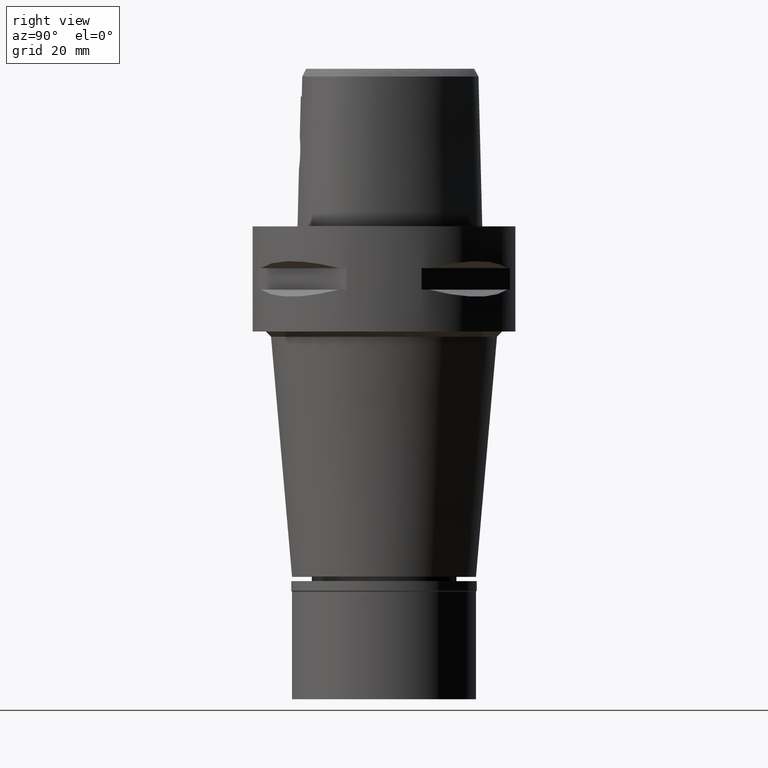
[diagram: clean part render]
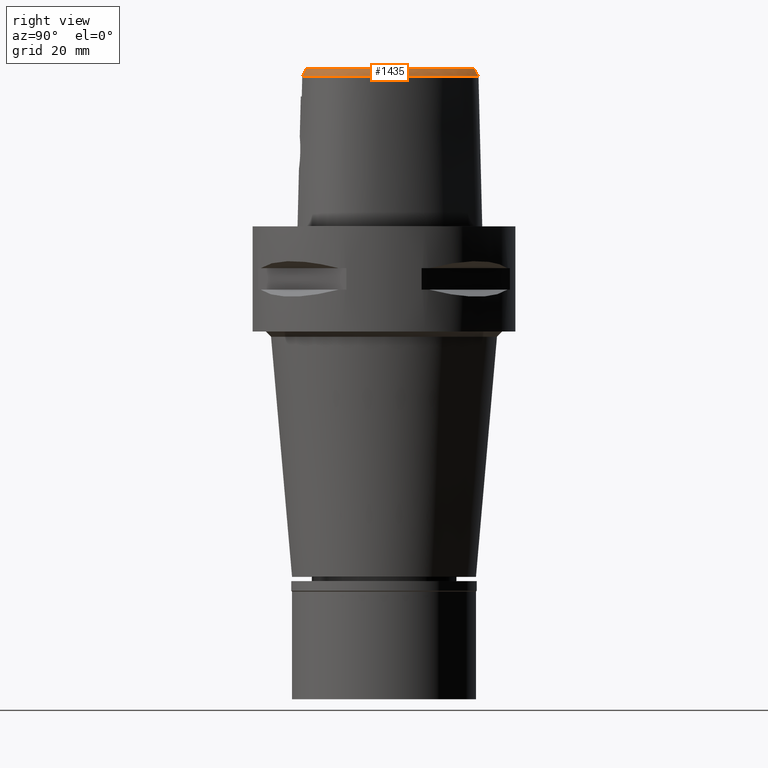
[diagram: same view with one face highlighted and labeled with its STEP entity id]
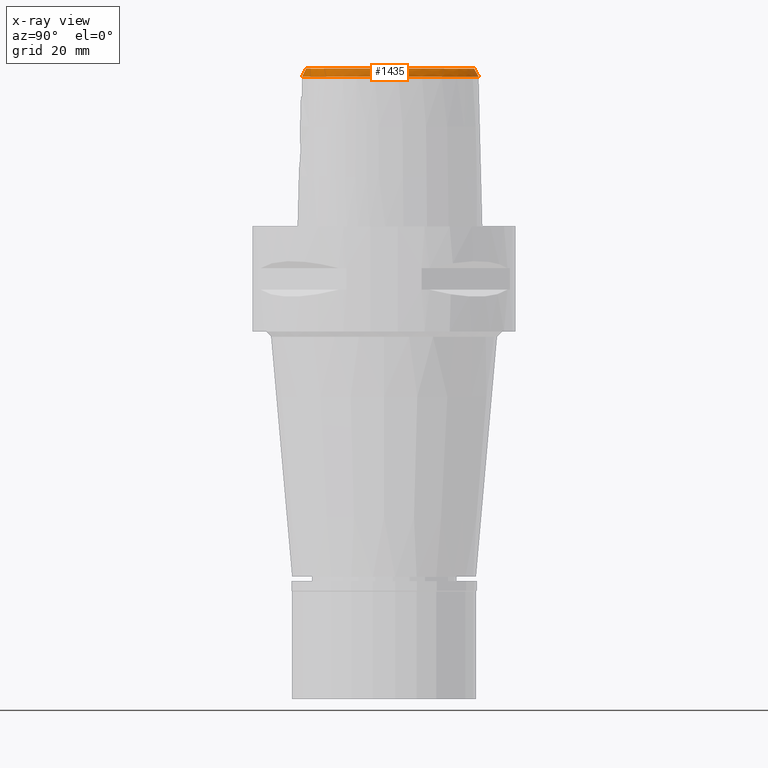
[diagram: x-ray of the same camera — body ghosted, the highlighted face saturated]
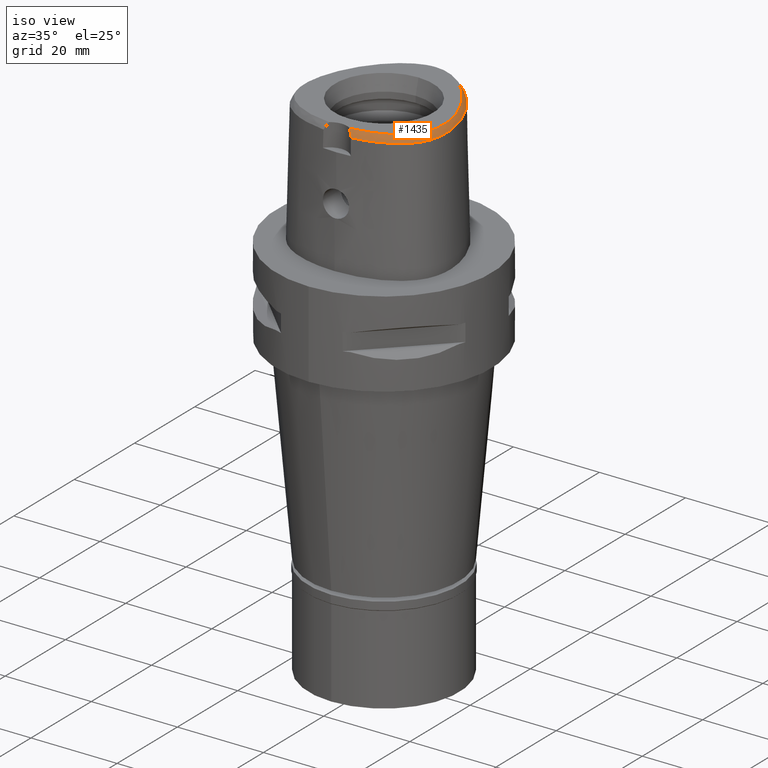
[diagram: same view with one face highlighted and labeled with its STEP entity id]
A machine part, right view. The second image highlights one B-rep face of the part: STEP entity #1435.
The next image is the same camera in x-ray: the body ghosted, the highlighted face saturated — about 0% of this face is hidden behind the body in this view.
A second angle (iso view) of the same face is appended — the face is thin or edge-on in the first view.
In plain terms, the highlighted face is a freeform B-spline surface patch.
Its self-contained STEP definition (entity closure, byte-faithful):
#20 = CARTESIAN_POINT ( 'NONE',  ( 16.06318230560999893, -7.341211726441999375, 28.96708367743999801 ) ) ;
#25 = CARTESIAN_POINT ( 'NONE',  ( 6.863227115065573258, 14.51498137220717410, 29.99999999999516120 ) ) ;
#41 = CARTESIAN_POINT ( 'NONE',  ( 14.92007271006999858, -9.559484903026000069, 28.96708342896000232 ) ) ;
#47 = CARTESIAN_POINT ( 'NONE',  ( 12.65514534656411882, -11.12483370673924732, 30.00000000000531841 ) ) ;
#65 = CARTESIAN_POINT ( 'NONE',  ( 15.22112875210999938, -7.687807943075000594, 30.14006812370000077 ) ) ;
#72 = CARTESIAN_POINT ( 'NONE',  ( 15.29323375805602936, -7.718923543003024079, 30.00000000000229861 ) ) ;
#95 = CARTESIAN_POINT ( 'NONE',  ( 7.863310641979999183, -13.95151688521000111, 29.55357671811000131 ) ) ;
#114 = CARTESIAN_POINT ( 'NONE',  ( 10.14119387402000072, -13.74735141594999988, 28.38059093183999693 ) ) ;
#122 = CARTESIAN_POINT ( 'NONE',  ( 15.71128456931492678, -6.534031654963481373, 30.00000000000159517 ) ) ;
#128 = CARTESIAN_POINT ( 'NONE',  ( -6.301949014333000064E-11, 17.15328888647999861, 30.00000000000000000 ) ) ;
#136 = ORIENTED_EDGE ( 'NONE', *, *, #3171, .T. ) ;
#138 = CARTESIAN_POINT ( 'NONE',  ( 12.90036511539999964, 7.999412311167001022, 29.55357583541999844 ) ) ;
#144 = CARTESIAN_POINT ( 'NONE',  ( 2.538962679605194950, -14.79292722369276092, 30.00000000000595435 ) ) ;
#165 = CARTESIAN_POINT ( 'NONE',  ( 16.61642685265000097, -1.593691307223999987, 28.96708315776000120 ) ) ;
#172 = CARTESIAN_POINT ( 'NONE',  ( 2.674237079551837759, -15.00654560860105136, 29.59847386634358557 ) ) ;
#190 = CARTESIAN_POINT ( 'NONE',  ( 16.76227622254999972, -6.055081460068000965, 28.38059098876999542 ) ) ;
#200 = CARTESIAN_POINT ( 'NONE',  ( 3.159971077295999908, -14.98323061888999952, 29.55357600510999916 ) ) ;
#213 = CARTESIAN_POINT ( 'NONE',  ( 16.03429360005000248, -2.631056289302000195, 30.14006815831000097 ) ) ;
#225 = CARTESIAN_POINT ( 'NONE',  ( 2.461529357711999655, -15.71215324455999962, 28.38059209296999796 ) ) ;
#242 = CARTESIAN_POINT ( 'NONE',  ( 16.99082547801999965, -4.443991837295999225, 28.38059218260999828 ) ) ;
#266 = CARTESIAN_POINT ( 'NONE',  ( 9.183266434829999270, 13.73132514527000048, 28.38059377673999961 ) ) ;
#272 = ORIENTED_EDGE ( 'NONE', *, *, #1714, .T. ) ;
#289 = CARTESIAN_POINT ( 'NONE',  ( 0.5636894552911999590, 17.06171939504999813, 30.14006817471999966 ) ) ;
#311 = CARTESIAN_POINT ( 'NONE',  ( 11.84303271896999910, 10.73855834176000101, 28.38059192632000105 ) ) ;
#334 = CARTESIAN_POINT ( 'NONE',  ( 3.052093429886000298, 16.53129057970000204, 30.14006824377000271 ) ) ;
#385 = CARTESIAN_POINT ( 'NONE',  ( 15.53987462035999911, -9.215062915530999987, 28.38059131616000030 ) ) ;
#391 = CARTESIAN_POINT ( 'NONE',  ( 11.92667412982332387, 9.061218325782888883, 30.00000000000109068 ) ) ;
#408 = CARTESIAN_POINT ( 'NONE',  ( 12.81363467122000088, -11.31853125569000085, 29.55357579149000102 ) ) ;
#430 = CARTESIAN_POINT ( 'NONE',  ( 6.811152537821999253, -14.61612724258000107, 28.96708602463999682 ) ) ;
#436 = CARTESIAN_POINT ( 'NONE',  ( 4.159771979224905714, -14.59766906204006531, 30.00000000000397193 ) ) ;
#442 = CARTESIAN_POINT ( 'NONE',  ( 2.406543924163999648, -14.80491841401999942, 30.00000000000000000 ) ) ;
#452 = CARTESIAN_POINT ( 'NONE',  ( 6.724267545710000960, -14.29907819113000045, 29.55357691977000201 ) ) ;
#479 = CARTESIAN_POINT ( 'NONE',  ( 11.32599089964000072, -11.98146669235000061, 30.14006810210000253 ) ) ;
#485 = CARTESIAN_POINT ( 'NONE',  ( 15.04259016984696373, -8.247723288182882584, 30.00000000000368061 ) ) ;
#487 = CARTESIAN_POINT ( 'NONE',  ( 16.85489147434688206, -5.354527548487546085, 28.52071728562186692 ) ) ;
#500 = CARTESIAN_POINT ( 'NONE',  ( 14.83372369776999911, 5.760537346607999432, 28.38059218026999986 ) ) ;
#520 = CARTESIAN_POINT ( 'NONE',  ( 16.79763554193000274, -0.4670741157540000410, 28.38059226020000025 ) ) ;
#529 = CARTESIAN_POINT ( 'NONE',  ( 15.07117004567362351, -9.793013887526788253, 28.52071728562186692 ) ) ;
#548 = CARTESIAN_POINT ( 'NONE',  ( 13.18211218956999886, 8.168757058733998377, 28.96708351572000240 ) ) ;
#575 = CARTESIAN_POINT ( 'NONE',  ( 12.40650082620000028, 9.385160752335000467, 28.96708431563000019 ) ) ;
#600 = CARTESIAN_POINT ( 'NONE',  ( 15.63563537726000341, -6.512960778821001107, 30.14006816412000234 ) ) ;
#628 = CARTESIAN_POINT ( 'NONE',  ( 8.502959684412999763, 13.01731031743999978, 30.14006793190000266 ) ) ;
#651 = CARTESIAN_POINT ( 'NONE',  ( 4.130005418857000343, 17.16976285832999949, 28.38059213633000155 ) ) ;
#670 = CARTESIAN_POINT ( 'NONE',  ( 0.04265960518690999764, 18.06647780908000200, 28.38059145955000062 ) ) ;
#694 = CARTESIAN_POINT ( 'NONE',  ( 10.08224778190999871, 12.82743142498999944, 28.38059298365000060 ) ) ;
#709 = CARTESIAN_POINT ( 'NONE',  ( -6.301949014333000064E-11, 17.15328888647999861, 30.00000000000000000 ) ) ;
#720 = CARTESIAN_POINT ( 'NONE',  ( 3.380858230139999865, 17.46130206655999828, 28.38059017097999970 ) ) ;
#747 = CARTESIAN_POINT ( 'NONE',  ( 14.02159384248000151, -9.654874514991998780, 30.14006811073999970 ) ) ;
#773 = CARTESIAN_POINT ( 'NONE',  ( 14.65184234432000032, -9.369266326079999985, 29.55357579792000067 ) ) ;
#793 = CARTESIAN_POINT ( 'NONE',  ( -0.3074302218382000129, 17.07054775129000035, 30.14006815435999798 ) ) ;
#798 = VERTEX_POINT ( 'NONE', #442 ) ;
#802 = CARTESIAN_POINT ( 'NONE',  ( 9.153172710139001467, -14.17716803220000088, 28.38059118652000024 ) ) ;
#813 = CARTESIAN_POINT ( 'NONE',  ( -0.4668486490910000453, 17.06219242155999893, 30.14006818550999967 ) ) ;
#821 = CARTESIAN_POINT ( 'NONE',  ( 15.44295954879000021, -7.122519753658000496, 30.14006813318000155 ) ) ;
#844 = CARTESIAN_POINT ( 'NONE',  ( 16.12688135875000128, -8.078668957113999127, 28.38059155920999999 ) ) ;
#852 = CARTESIAN_POINT ( 'NONE',  ( 16.08569500455590884, -4.373922630229269082, 30.00000000000166267 ) ) ;
#874 = CARTESIAN_POINT ( 'NONE',  ( 15.95397022470999815, 1.814119722683000147, 28.96708574531999858 ) ) ;
#880 = CARTESIAN_POINT ( 'NONE',  ( 15.68929135223704208, 0.4919393172822785210, 30.00000000000180833 ) ) ;
#881 = CARTESIAN_POINT ( 'NONE',  ( 5.902447799197345191, -15.16907841529213918, 28.52071728562186692 ) ) ;
#896 = CARTESIAN_POINT ( 'NONE',  ( 14.18525198368000062, 7.062880909126000972, 28.38059155177000292 ) ) ;
#902 = CARTESIAN_POINT ( 'NONE',  ( 10.60500548643788576, -12.49469941439725496, 29.99999999999858957 ) ) ;
#921 = CARTESIAN_POINT ( 'NONE',  ( 11.86160745584000153, 9.017290265054000997, 30.14006804663999972 ) ) ;
#930 = CARTESIAN_POINT ( 'NONE',  ( 11.33338046474596439, -13.08225241901946490, 28.52071728562186692 ) ) ;
#933 = CARTESIAN_POINT ( 'NONE',  ( 1.969224416557000090, -15.42106921690000121, 28.96708408107000210 ) ) ;
#953 = CARTESIAN_POINT ( 'NONE',  ( 13.46385926375000075, 8.338101806301001062, 28.38059119602000280 ) ) ;
#963 = CARTESIAN_POINT ( 'NONE',  ( 4.303219020468000089, -15.49394114751000018, 28.38059061881999767 ) ) ;
#975 = CARTESIAN_POINT ( 'NONE',  ( 16.57531950036000268, 0.6891833521985000210, 28.38059514225999891 ) ) ;
#997 = CARTESIAN_POINT ( 'NONE',  ( 8.076222430999999702, 14.28478736625000067, 28.96708385846000056 ) ) ;
#1025 = CARTESIAN_POINT ( 'NONE',  ( 9.842721025210000363, 12.60227890373999848, 28.96708465593000170 ) ) ;
#1049 = CARTESIAN_POINT ( 'NONE',  ( 7.863169644245999734, 14.03441962619000094, 29.55357598355000093 ) ) ;
#1059 = CARTESIAN_POINT ( 'NONE',  ( 3.078265684543580960, 16.60532678263120232, 29.99999999999918643 ) ) ;
#1070 = CARTESIAN_POINT ( 'NONE',  ( 1.893249527224999840, 17.53842658629999818, 28.96708371765999956 ) ) ;
#1093 = CARTESIAN_POINT ( 'NONE',  ( 6.552171011637000220, 15.84847921453999930, 28.38059502621999997 ) ) ;
#1102 = CARTESIAN_POINT ( 'NONE',  ( 2.158700576340999877, -15.73680809660999991, 28.38059210300999879 ) ) ;
#1124 = CARTESIAN_POINT ( 'NONE',  ( 6.637382553598000889, -13.98202913967999983, 30.14006781488999920 ) ) ;
#1128 = CARTESIAN_POINT ( 'NONE',  ( 6.048015628560617252, 15.09357031580420561, 30.00000000000423483 ) ) ;
#1146 = CARTESIAN_POINT ( 'NONE',  ( 14.32790802745000036, -10.80217436755000016, 28.38059111588000150 ) ) ;
#1151 = CARTESIAN_POINT ( 'NONE',  ( 14.55828366953321229, 4.114142377745556800, 29.99999999999883826 ) ) ;
#1171 = CARTESIAN_POINT ( 'NONE',  ( 9.722323305256001191, -12.85443043200999824, 30.14006817795999993 ) ) ;
#1191 = CARTESIAN_POINT ( 'NONE',  ( -0.5036687123200999094, 17.71826501358000172, 28.96708329153999983 ) ) ;
#1198 = CARTESIAN_POINT ( 'NONE',  ( 14.69744249013000115, -8.701692051002998696, 30.14006814471999718 ) ) ;
#1218 = CARTESIAN_POINT ( 'NONE',  ( 10.00157035110000159, -13.44971108796999815, 28.96708334721000000 ) ) ;
#1226 = CARTESIAN_POINT ( 'NONE',  ( 4.422474504766046977, 17.08283549833119608, 28.52071728562186692 ) ) ;
#1239 = CARTESIAN_POINT ( 'NONE',  ( 16.26915082688000069, -6.689416405255999898, 28.96708344930000223 ) ) ;
#1247 = CARTESIAN_POINT ( 'NONE',  ( 16.04058509949720346, -1.654113685488118657, 30.00000000000676437 ) ) ;
#1249 = CARTESIAN_POINT ( 'NONE',  ( 8.702202469521795436, -14.36510984286243797, 28.52071728562186692 ) ) ;
#1268 = CARTESIAN_POINT ( 'NONE',  ( 16.14879385161999892, -0.5734387889291999718, 29.55357612877999784 ) ) ;
#1275 = CARTESIAN_POINT ( 'NONE',  ( 15.90185233182387492, -0.6139199331564287876, 30.00000000000260059 ) ) ;
#1290 = CARTESIAN_POINT ( 'NONE',  ( 16.57317619408999931, -5.232669881326999395, 28.96708356255999917 ) ) ;
#1295 = CARTESIAN_POINT ( 'NONE',  ( 2.406543924163999648, -14.80491841401999942, 30.00000000000000000 ) ) ;
#1314 = CARTESIAN_POINT ( 'NONE',  ( 17.01958194338000041, -2.586310308865999996, 28.38059115905000240 ) ) ;
#1334 = CARTESIAN_POINT ( 'NONE',  ( -3.009969613578000157E-11, 17.98202997909999823, 28.52071728569000086 ) ) ;
#1344 = CARTESIAN_POINT ( 'NONE',  ( 15.56824103884000010, 3.056106132682000265, 28.96708351217000299 ) ) ;
#1371 = CARTESIAN_POINT ( 'NONE',  ( 8.956497518023999405, 13.49332020266000143, 28.96708516179000270 ) ) ;
#1384 = FACE_OUTER_BOUND ( 'NONE', #2965, .T. ) ;
#1394 = CARTESIAN_POINT ( 'NONE',  ( 9.363667511799999232, 12.15197386123000101, 30.14006800049999768 ) ) ;
#1399 = ORIENTED_EDGE ( 'NONE', *, *, #4698, .F. ) ;
#1422 = CARTESIAN_POINT ( 'NONE',  ( 8.729728601217999540, 13.25531526005000060, 29.55357654684999957 ) ) ;
#1427 = B_SPLINE_SURFACE_WITH_KNOTS ( 'NONE', 3, 3, ( 
 ( #3276, #4877, #933, #4482 ),
 ( #3365, #2220, #4854, #1102 ),
 ( #2240, #2077, #3597, #225 ),
 ( #1736, #200, #3250, #3216 ),
 ( #2842, #1766, #4345, #963 ),
 ( #4765, #2474, #3981, #2872 ),
 ( #1124, #452, #430, #2632 ),
 ( #4141, #95, #4236, #3848 ),
 ( #4194, #3034, #2335, #802 ),
 ( #1171, #2709, #1218, #114 ),
 ( #1525, #3440, #3778, #3107 ),
 ( #479, #1995, #1575, #1967 ),
 ( #3805, #2684, #3514, #2313 ),
 ( #3055, #408, #1624, #4603 ),
 ( #4510, #4582, #3825, #4532 ),
 ( #1942, #3873, #4216, #1146 ),
 ( #747, #1547, #2654, #1921 ),
 ( #4163, #773, #41, #2261 ),
 ( #1198, #3488, #2360, #385 ),
 ( #1901, #3461, #4555, #1602 ),
 ( #65, #3416, #2729, #844 ),
 ( #821, #3084, #20, #2285 ),
 ( #600, #2090, #1239, #4676 ),
 ( #3898, #3996, #2113, #190 ),
 ( #2860, #2412, #1290, #3634 ),
 ( #3128, #1677, #3919, #242 ),
 ( #4622, #2753, #3206, #2436 ),
 ( #213, #2802, #2486, #1314 ),
 ( #3972, #4263, #165, #4650 ),
 ( #1725, #1268, #3152, #520 ),
 ( #1701, #4699, #2465, #975 ),
 ( #3610, #2826, #874, #1646 ),
 ( #2014, #2067, #1344, #4333 ),
 ( #3233, #4357, #2780, #2040 ),
 ( #4727, #4286, #2390, #500 ),
 ( #3181, #3534, #3560, #896 ),
 ( #4307, #138, #548, #953 ),
 ( #921, #3585, #575, #3945 ),
 ( #2211, #2602, #2575, #311 ),
 ( #2182, #4088, #3338, #1448 ),
 ( #1394, #1829, #1025, #694 ),
 ( #628, #1422, #1371, #266 ),
 ( #4115, #1049, #997, #3730 ),
 ( #4775, #1776, #3660, #1469 ),
 ( #2906, #2509, #2883, #1093 ),
 ( #3288, #4828, #2937, #4404 ),
 ( #4432, #2555, #3307, #2959 ),
 ( #2233, #2979, #2536, #651 ),
 ( #334, #4454, #4021, #720 ),
 ( #4472, #4380, #2139, #4047 ),
 ( #2161, #1850, #1070, #3681 ),
 ( #3358, #4846, #3752, #1750 ),
 ( #289, #1797, #3265, #4800 ),
 ( #4754, #3701, #4068, #670 ),
 ( #793, #2303, #3796, #3818 ),
 ( #813, #4134, #1191, #3047 ) ),
 .UNSPECIFIED., .F., .F., .F.,
 ( 4, 1, 1, 1, 1, 1, 1, 1, 1, 1, 1, 1, 1, 1, 1, 1, 1, 1, 1, 1, 1, 1, 1, 1, 1, 1, 1, 1, 1, 1, 1, 1, 1, 1, 1, 1, 1, 1, 1, 1, 1, 1, 1, 1, 1, 1, 1, 1, 1, 1, 1, 1, 1, 4 ),
 ( 4, 4 ),
 ( -0.006850724150829000207, 0.0000000000000000000, 0.005706470806014000280, 0.02559234138984000165, 0.04547821197368000223, 0.06536408255751000040, 0.08524995314132000068, 0.1051358237252000005, 0.1250216943090000088, 0.1449075648927999893, 0.1647934354767000009, 0.1846793060604999814, 0.2045651766443000175, 0.2244510472280999980, 0.2443369178119999818, 0.2642227883957999901, 0.2841086589796000261, 0.3039945295635000377, 0.3238804001471999872, 0.3437662707310999988, 0.3636521413150000104, 0.3835380118987999909, 0.4034238824826000269, 0.4233097530664000074, 0.4431956236502999635, 0.4630814942340999996, 0.4829673648179000356, 0.5028532354018000472, 0.5227391059856000277, 0.5426249765694000082, 0.5625108471533000198, 0.5823967177369999693, 0.6022825883208999809, 0.6221684589047999925, 0.6420543294886000840, 0.6619402000723999535, 0.6818260706561999340, 0.7017119412401000567, 0.7215978118238999262, 0.7414836824077000177, 0.7613695529916000293, 0.7812554235752999787, 0.8011412941591999903, 0.8210271647431000019, 0.8409130353268000624, 0.8607989059106999630, 0.8806847764944999435, 0.9005706470783999551, 0.9204565176621999356, 0.9403423882460000272, 0.9602282588299000388, 0.9801141294135999882, 1.000000000000000000, 1.016057694064999906 ),
 ( -0.07181344949152000667, 1.071845542588999889 ),
 .UNSPECIFIED. ) ;
#1435 = ADVANCED_FACE ( 'NONE', ( #1384 ), #1427, .F. ) ;
#1448 = CARTESIAN_POINT ( 'NONE',  ( 10.97300755747999901, 11.82788278324999887, 28.38059066848999734 ) ) ;
#1469 = CARTESIAN_POINT ( 'NONE',  ( 7.410824690153999583, 15.23896754217999927, 28.38059056668999958 ) ) ;
#1510 = B_SPLINE_CURVE_WITH_KNOTS ( 'NONE', 3,
 ( #3925, #3567, #172, #1295 ),
 .UNSPECIFIED., .F., .F.,
 ( 4, 4 ),
 ( 0.0000000000000000000, 1.000000000000000000 ),
 .UNSPECIFIED. ) ;
#1525 = CARTESIAN_POINT ( 'NONE',  ( 10.56748248473999929, -12.42572735957999974, 30.14006816282000045 ) ) ;
#1547 = CARTESIAN_POINT ( 'NONE',  ( 14.27613808196000100, -9.863043355599000250, 29.55357597683000037 ) ) ;
#1575 = CARTESIAN_POINT ( 'NONE',  ( 11.67492807168000013, -12.53880853885999969, 28.96708390663999921 ) ) ;
#1584 = CARTESIAN_POINT ( 'NONE',  ( 11.36765809995626064, -12.04801986072626896, 29.99999999999928946 ) ) ;
#1602 = CARTESIAN_POINT ( 'NONE',  ( 15.84941387524999712, -8.664231345333000434, 28.38059082647000153 ) ) ;
#1608 = CARTESIAN_POINT ( 'NONE',  ( 14.44767169633470516, -9.224476417585369958, 30.00000000000319744 ) ) ;
#1624 = CARTESIAN_POINT ( 'NONE',  ( 13.02185093511999980, -11.57300252722000167, 28.96708341408999843 ) ) ;
#1630 = CARTESIAN_POINT ( 'NONE',  ( 15.51702143706069670, -7.148634146069317019, 29.99999999999880274 ) ) ;
#1631 = CARTESIAN_POINT ( 'NONE',  ( 16.47905536661016512, -6.962316254603442722, 28.52071728562186692 ) ) ;
#1644 = VERTEX_POINT ( 'NONE', #1334 ) ;
#1646 = CARTESIAN_POINT ( 'NONE',  ( 16.27040028736999844, 1.903225623307000181, 28.38059469159999892 ) ) ;
#1656 = CARTESIAN_POINT ( 'NONE',  ( 0.6295828025434362374, 17.98202997637834955, 28.52071728562186692 ) ) ;
#1677 = CARTESIAN_POINT ( 'NONE',  ( 16.33521329447999904, -4.393238683811000023, 29.55357610738999696 ) ) ;
#1701 = CARTESIAN_POINT ( 'NONE',  ( 15.61265577524000037, 0.4748790123057999857, 30.14006781379000088 ) ) ;
#1714 = EDGE_CURVE ( 'NONE', #1644, #2867, #3142, .T. ) ;
#1717 = CARTESIAN_POINT ( 'NONE',  ( -3.009969613578000157E-11, 17.98202997909999823, 28.52071728569000086 ) ) ;
#1725 = CARTESIAN_POINT ( 'NONE',  ( 15.82437300645999834, -0.6266211255168000482, 30.14006806307000019 ) ) ;
#1736 = CARTESIAN_POINT ( 'NONE',  ( 3.121246857247999884, -14.65687832787000033, 30.14006810186999985 ) ) ;
#1750 = CARTESIAN_POINT ( 'NONE',  ( 1.287380336975000095, 17.97761362175999622, 28.38059090744999935 ) ) ;
#1766 = CARTESIAN_POINT ( 'NONE',  ( 4.199316179176999952, -14.84474535062999934, 29.55357567629999949 ) ) ;
#1776 = CARTESIAN_POINT ( 'NONE',  ( 7.014183926828000182, 14.71456341739999907, 29.55357566192000007 ) ) ;
#1797 = CARTESIAN_POINT ( 'NONE',  ( 0.5867287961756999515, 17.38974910633000093, 29.55357577292999949 ) ) ;
#1829 = CARTESIAN_POINT ( 'NONE',  ( 9.603194268504999798, 12.37712638249000108, 29.55357632820999925 ) ) ;
#1850 = CARTESIAN_POINT ( 'NONE',  ( 1.825611686568000103, 17.21663674869000005, 29.55357592270000211 ) ) ;
#1901 = CARTESIAN_POINT ( 'NONE',  ( 14.97280525350000069, -8.211698094907999845, 30.14006818708000068 ) ) ;
#1921 = CARTESIAN_POINT ( 'NONE',  ( 14.78522656093999998, -10.27938103680999937, 28.38059170902999639 ) ) ;
#1942 = CARTESIAN_POINT ( 'NONE',  ( 13.60830814342000039, -10.12743670611000013, 30.14006816204999950 ) ) ;
#1947 = CARTESIAN_POINT ( 'NONE',  ( 3.130495111450228407, -14.73481892791614278, 30.00000000000112976 ) ) ;
#1967 = CARTESIAN_POINT ( 'NONE',  ( 11.84939665770999895, -12.81747946211999967, 28.38059180890000022 ) ) ;
#1995 = CARTESIAN_POINT ( 'NONE',  ( 11.50045948565999865, -12.26013761560999882, 29.55357600437000087 ) ) ;
#2000 = CARTESIAN_POINT ( 'NONE',  ( 15.87349190488007622, -5.869792298897957394, 30.00000000000155254 ) ) ;
#2001 = CARTESIAN_POINT ( 'NONE',  ( 16.79165444019614739, -0.3537785292841507112, 28.52071728562186692 ) ) ;
#2014 = CARTESIAN_POINT ( 'NONE',  ( 14.94603091882000001, 2.843708326584999835, 30.14006815560000163 ) ) ;
#2027 = CARTESIAN_POINT ( 'NONE',  ( 3.168920890822999770, -15.55911073834000113, 28.52071374672999582 ) ) ;
#2036 = CARTESIAN_POINT ( 'NONE',  ( 4.499552315895915200, 15.99769543814564088, 30.00000000000155254 ) ) ;
#2040 = CARTESIAN_POINT ( 'NONE',  ( 15.40029459171000070, 4.453099689461000210, 28.38059100918999889 ) ) ;
#2049 = CARTESIAN_POINT ( 'NONE',  ( 3.168920890822999770, -15.55911073834000113, 28.52071374672999582 ) ) ;
#2067 = CARTESIAN_POINT ( 'NONE',  ( 15.25713597883000006, 2.949907229632999783, 29.55357583388999743 ) ) ;
#2077 = CARTESIAN_POINT ( 'NONE',  ( 2.402922512799000376, -15.05759804422999970, 29.55357608268000291 ) ) ;
#2090 = CARTESIAN_POINT ( 'NONE',  ( 15.95239310207000116, -6.601188592038000458, 29.55357580671000051 ) ) ;
#2113 = CARTESIAN_POINT ( 'NONE',  ( 16.44039012750999973, -5.987976310532999946, 28.96708338352000212 ) ) ;
#2139 = CARTESIAN_POINT ( 'NONE',  ( 2.569560953296999628, 17.37306529333999805, 28.96708338864000254 ) ) ;
#2161 = CARTESIAN_POINT ( 'NONE',  ( 1.757973845912000010, 16.89484691108999925, 30.14006812773000021 ) ) ;
#2182 = CARTESIAN_POINT ( 'NONE',  ( 10.21888584799000022, 11.19237327628000145, 30.14006820074000004 ) ) ;
#2211 = CARTESIAN_POINT ( 'NONE',  ( 11.05603306470000113, 10.14426804790999981, 30.14006809193999814 ) ) ;
#2220 = CARTESIAN_POINT ( 'NONE',  ( 2.107381550830000450, -15.08165983978000035, 29.55357608545000403 ) ) ;
#2233 = CARTESIAN_POINT ( 'NONE',  ( 3.742019048006000048, 16.26289145310999729, 30.14006807378999753 ) ) ;
#2240 = CARTESIAN_POINT ( 'NONE',  ( 2.373619090341999804, -14.73032044406000018, 30.14006807753999695 ) ) ;
#2261 = CARTESIAN_POINT ( 'NONE',  ( 15.18830307583000128, -9.749703479972000153, 28.38059106001000131 ) ) ;
#2265 = CARTESIAN_POINT ( 'NONE',  ( 9.420872132874794858, 12.20574557692409634, 30.00000000000455103 ) ) ;
#2285 = CARTESIAN_POINT ( 'NONE',  ( 16.37329368402000185, -7.450557712833000501, 28.38059144956999802 ) ) ;
#2303 = CARTESIAN_POINT ( 'NONE',  ( -0.3197702995465999676, 17.39894264343000074, 29.55357583781000130 ) ) ;
#2313 = CARTESIAN_POINT ( 'NONE',  ( 12.57812788082000033, -12.32793406355000165, 28.38059198991999565 ) ) ;
#2319 = CARTESIAN_POINT ( 'NONE',  ( 13.66559393375323772, -10.18115111193748668, 30.00000000000477129 ) ) ;
#2335 = CARTESIAN_POINT ( 'NONE',  ( 9.031149643654000414, -13.87189868493999967, 28.96708350966000012 ) ) ;
#2360 = CARTESIAN_POINT ( 'NONE',  ( 15.25906391028000009, -9.043939294021001274, 28.96708359235000074 ) ) ;
#2390 = CARTESIAN_POINT ( 'NONE',  ( 14.53572330853999972, 5.621773279986999938, 28.96708414351000016 ) ) ;
#2395 = CARTESIAN_POINT ( 'NONE',  ( 13.19176257967057886, -10.65479018522793275, 30.00000000000727240 ) ) ;
#2397 = CARTESIAN_POINT ( 'NONE',  ( 3.738627708319397502, -15.49270856215321679, 28.52071728562186692 ) ) ;
#2412 = CARTESIAN_POINT ( 'NONE',  ( 16.24762770175999904, -5.186565280856000548, 29.55357585566000012 ) ) ;
#2436 = CARTESIAN_POINT ( 'NONE',  ( 17.03317732885999902, -3.547311432646000018, 28.38059142474999774 ) ) ;
#2441 = B_SPLINE_CURVE_WITH_KNOTS ( 'NONE', 3,
 ( #4292, #1656, #3926, #1226, #3521, #3883, #2808, #3115, #2001, #2786, #487, #1631, #2763, #3980, #529, #4629, #3954, #930, #1249, #881, #2397, #2049 ),
 .UNSPECIFIED., .F., .F.,
 ( 4, 1, 1, 1, 1, 1, 1, 1, 1, 1, 1, 1, 1, 1, 1, 1, 1, 1, 1, 4 ),
 ( 0.0000000000000000000, 0.04404152929334257532, 0.08808305858552231693, 0.1761661171698820638, 0.2642491757542417830, 0.3523322343386015021, 0.4404152929230668589, 0.5284983515074266336, 0.5725398807996064932, 0.6165814100916805485, 0.6606229393839662123, 0.6826437040300560311, 0.7046644686761459608, 0.7266852333222358906, 0.7487059979683258204, 0.7927475272605056800, 0.8367890565526855395, 0.8808305858448653991, 0.9689136444292674177, 1.000000000000000000 ),
 .UNSPECIFIED. ) ;
#2457 = VECTOR ( 'NONE', #2794, 1000.000000000000000 ) ;
#2465 = CARTESIAN_POINT ( 'NONE',  ( 16.25443159198999865, 0.6177485722343000196, 28.96708603276999838 ) ) ;
#2474 = CARTESIAN_POINT ( 'NONE',  ( 5.499440962021999724, -14.59976986477999894, 29.55357614258999988 ) ) ;
#2486 = CARTESIAN_POINT ( 'NONE',  ( 16.69115249560999814, -2.601225635678000359, 28.96708349213999867 ) ) ;
#2509 = CARTESIAN_POINT ( 'NONE',  ( 6.186996684583999873, 15.30167686284999995, 29.55357689128999965 ) ) ;
#2536 = CARTESIAN_POINT ( 'NONE',  ( 4.000676628574000304, 16.86747238991999964, 28.96708411547999873 ) ) ;
#2555 = CARTESIAN_POINT ( 'NONE',  ( 4.612267418755999770, 16.22113780835000085, 29.55357724254000118 ) ) ;
#2566 = CARTESIAN_POINT ( 'NONE',  ( 3.772905803807439895, 16.33508552419313631, 30.00000000000678213 ) ) ;
#2575 = CARTESIAN_POINT ( 'NONE',  ( 11.58069950087999800, 10.54046157714000032, 28.96708398152999919 ) ) ;
#2588 = CARTESIAN_POINT ( 'NONE',  ( 0.5691917915716874221, 17.14006060249313279, 30.00000000000279599 ) ) ;
#2602 = CARTESIAN_POINT ( 'NONE',  ( 11.31836628279000045, 10.34236481253000051, 29.55357603674000089 ) ) ;
#2632 = CARTESIAN_POINT ( 'NONE',  ( 6.898037529934999412, -14.93317629403000169, 28.38059512951999963 ) ) ;
#2638 = CARTESIAN_POINT ( 'NONE',  ( 7.700998872106353588, 13.84384558891505002, 30.00000000000507683 ) ) ;
#2654 = CARTESIAN_POINT ( 'NONE',  ( 14.53068232144999961, -10.07121219620999852, 28.96708384293000194 ) ) ;
#2684 = CARTESIAN_POINT ( 'NONE',  ( 12.19506964081999989, -11.79344513502000069, 29.55357605427000323 ) ) ;
#2709 = CARTESIAN_POINT ( 'NONE',  ( 9.861946828176000324, -13.15207075998999997, 29.55357576259000041 ) ) ;
#2716 = CARTESIAN_POINT ( 'NONE',  ( 14.76450668990795201, -8.742560395149729047, 29.99999999999902656 ) ) ;
#2729 = CARTESIAN_POINT ( 'NONE',  ( 15.82496382319999917, -7.948381952434999675, 28.96708374737000113 ) ) ;
#2753 = CARTESIAN_POINT ( 'NONE',  ( 16.37569864617999826, -3.537279761618000062, 29.55357589846999744 ) ) ;
#2761 = CARTESIAN_POINT ( 'NONE',  ( 16.12546998862508829, -3.533461825553310565, 30.00000000000177636 ) ) ;
#2763 = CARTESIAN_POINT ( 'NONE',  ( 16.01658383235454508, -8.155509186612755812, 28.52071728562186692 ) ) ;
#2780 = CARTESIAN_POINT ( 'NONE',  ( 15.09534815832999932, 4.330341396720000624, 28.96708339655000231 ) ) ;
#2785 = CARTESIAN_POINT ( 'NONE',  ( 15.39668103801976251, 1.657188505494204378, 30.00000000000121858 ) ) ;
#2786 = CARTESIAN_POINT ( 'NONE',  ( 16.99625257116860411, -3.273868232427084468, 28.52071728562186692 ) ) ;
#2794 = DIRECTION ( 'NONE',  ( -1.941473429687034607E-11, -0.4887572537803078765, 0.8724198226067148010 ) ) ;
#2802 = CARTESIAN_POINT ( 'NONE',  ( 16.36272304782999854, -2.616140962489999833, 29.55357582521999760 ) ) ;
#2808 = CARTESIAN_POINT ( 'NONE',  ( 13.75951381385775996, 7.944084035686641343, 28.52071728562186692 ) ) ;
#2820 = VERTEX_POINT ( 'NONE', #2027 ) ;
#2826 = CARTESIAN_POINT ( 'NONE',  ( 15.63754016204999964, 1.725013822058000024, 29.55357679903999824 ) ) ;
#2842 = CARTESIAN_POINT ( 'NONE',  ( 4.147364758532000373, -14.52014745218999892, 30.14006820504000217 ) ) ;
#2860 = CARTESIAN_POINT ( 'NONE',  ( 15.92207920944000143, -5.140460680385000813, 30.14006814876000107 ) ) ;
#2867 = VERTEX_POINT ( 'NONE', #128 ) ;
#2872 = CARTESIAN_POINT ( 'NONE',  ( 5.638243206404999874, -15.24241797508999952, 28.38059231030999996 ) ) ;
#2883 = CARTESIAN_POINT ( 'NONE',  ( 6.369583848110999647, 15.57507803869000007, 28.96708595876000203 ) ) ;
#2906 = CARTESIAN_POINT ( 'NONE',  ( 6.004409521058000188, 15.02827568700999983, 30.14006782383000171 ) ) ;
#2937 = CARTESIAN_POINT ( 'NONE',  ( 5.550727184732000552, 16.08600015499000335, 28.96708757867999751 ) ) ;
#2959 = CARTESIAN_POINT ( 'NONE',  ( 4.908427651042999607, 16.80823521219000227, 28.38059630038000236 ) ) ;
#2965 = EDGE_LOOP ( 'NONE', ( #1399, #272, #136, #3052 ) ) ;
#2979 = CARTESIAN_POINT ( 'NONE',  ( 3.871347838290000176, 16.56518192152000069, 29.55357609462999946 ) ) ;
#3019 = CARTESIAN_POINT ( 'NONE',  ( 5.258649622039278881, 15.58603480842944577, 30.00000000000392220 ) ) ;
#3034 = CARTESIAN_POINT ( 'NONE',  ( 8.909126577170001227, -13.56662933768000023, 29.55357583279999645 ) ) ;
#3038 = CARTESIAN_POINT ( 'NONE',  ( 13.38374903490518619, 6.636915464740819282, 30.00000000000765965 ) ) ;
#3047 = CARTESIAN_POINT ( 'NONE',  ( -0.5220787439346000758, 18.04630130958999956, 28.38059084454999947 ) ) ;
#3052 = ORIENTED_EDGE ( 'NONE', *, *, #3421, .F. ) ;
#3055 = CARTESIAN_POINT ( 'NONE',  ( 12.60541840732000018, -11.06405998416000180, 30.14006816890000096 ) ) ;
#3084 = CARTESIAN_POINT ( 'NONE',  ( 15.75307092720000135, -7.231865740049999935, 29.55357590530999801 ) ) ;
#3107 = CARTESIAN_POINT ( 'NONE',  ( 11.03883057146000013, -13.29212515839999931, 28.38059110689000164 ) ) ;
#3115 = CARTESIAN_POINT ( 'NONE',  ( 15.84228676733096641, 3.460033425849828870, 28.52071728562186692 ) ) ;
#3128 = CARTESIAN_POINT ( 'NONE',  ( 16.00740720270999873, -4.367862107067999489, 30.14006806977999986 ) ) ;
#3134 = CARTESIAN_POINT ( 'NONE',  ( 6.658132732489185912, -14.05774790738601787, 30.00000000000065015 ) ) ;
#3142 = LINE ( 'NONE', #1717, #2457 ) ;
#3152 = CARTESIAN_POINT ( 'NONE',  ( 16.47321469677000394, -0.5202564523416000064, 28.96708419448999905 ) ) ;
#3171 = EDGE_CURVE ( 'NONE', #2867, #798, #4211, .T. ) ;
#3181 = CARTESIAN_POINT ( 'NONE',  ( 13.31442432883000038, 6.600072269995999719, 30.14006812435000171 ) ) ;
#3206 = CARTESIAN_POINT ( 'NONE',  ( 16.70443798751999864, -3.542295597131999596, 28.96708366160999759 ) ) ;
#3216 = CARTESIAN_POINT ( 'NONE',  ( 3.237419517392000401, -15.63593520092999789, 28.38059181159999866 ) ) ;
#3233 = CARTESIAN_POINT ( 'NONE',  ( 14.48545529156999834, 4.084824811238000564, 30.14006817127000204 ) ) ;
#3250 = CARTESIAN_POINT ( 'NONE',  ( 3.198695297343999933, -15.30958290991000048, 28.96708390835999936 ) ) ;
#3265 = CARTESIAN_POINT ( 'NONE',  ( 0.6097681370602000550, 17.71777881761000017, 28.96708337115000020 ) ) ;
#3276 = CARTESIAN_POINT ( 'NONE',  ( 1.921880207380000094, -14.76563384655000100, 30.14006807844999969 ) ) ;
#3288 = CARTESIAN_POINT ( 'NONE',  ( 5.219042581220000088, 15.51823724223999967, 30.14006760415999864 ) ) ;
#3307 = CARTESIAN_POINT ( 'NONE',  ( 4.760347534899000088, 16.51468651026999979, 28.96708677145999999 ) ) ;
#3338 = CARTESIAN_POINT ( 'NONE',  ( 10.72163365431999793, 11.61604628093000002, 28.96708317923999942 ) ) ;
#3349 = CARTESIAN_POINT ( 'NONE',  ( 2.412811123804942337, 16.81558681049688886, 30.00000000000431299 ) ) ;
#3358 = CARTESIAN_POINT ( 'NONE',  ( 1.150592875310000096, 17.00065801104999963, 30.14006818008000366 ) ) ;
#3365 = CARTESIAN_POINT ( 'NONE',  ( 2.081722038074000025, -14.75408571136000013, 30.14006807666999777 ) ) ;
#3391 = CARTESIAN_POINT ( 'NONE',  ( 1.161482229273305578, 17.07843133414609937, 30.00000000000819256 ) ) ;
#3416 = CARTESIAN_POINT ( 'NONE',  ( 15.52304628765000061, -7.818094947755001023, 29.55357593554000317 ) ) ;
#3421 = EDGE_CURVE ( 'NONE', #2820, #798, #1510, .T. ) ;
#3424 = CARTESIAN_POINT ( 'NONE',  ( 1.774127352510904698, 16.97169788999062590, 30.00000000000335021 ) ) ;
#3440 = CARTESIAN_POINT ( 'NONE',  ( 10.72459851365000105, -12.71452662584999871, 29.55357581083999818 ) ) ;
#3461 = CARTESIAN_POINT ( 'NONE',  ( 15.26500812741999979, -8.362542511716998916, 29.55357573354000067 ) ) ;
#3466 = CARTESIAN_POINT ( 'NONE',  ( 5.446614459517417295, -14.35518554873044295, 30.00000000000504841 ) ) ;
#3488 = CARTESIAN_POINT ( 'NONE',  ( 14.97825320021000017, -8.872815672512000873, 29.55357586853000029 ) ) ;
#3514 = CARTESIAN_POINT ( 'NONE',  ( 12.38659876082000189, -12.06068959927999984, 28.96708402208999900 ) ) ;
#3521 = CARTESIAN_POINT ( 'NONE',  ( 7.523733068099031307, 15.26501041873741826, 28.52071728562186692 ) ) ;
#3534 = CARTESIAN_POINT ( 'NONE',  ( 13.60470021378000105, 6.754341816373000462, 29.55357593348999856 ) ) ;
#3560 = CARTESIAN_POINT ( 'NONE',  ( 13.89497609872999995, 6.908611362749999429, 28.96708374262999897 ) ) ;
#3567 = CARTESIAN_POINT ( 'NONE',  ( 2.935843368184688273, -15.25651436812337636, 29.10537844858692225 ) ) ;
#3585 = CARTESIAN_POINT ( 'NONE',  ( 12.13405414102000002, 9.201225508693999799, 29.55357618113999862 ) ) ;
#3597 = CARTESIAN_POINT ( 'NONE',  ( 2.432225935254999971, -15.38487564439999922, 28.96708408782999911 ) ) ;
#3610 = CARTESIAN_POINT ( 'NONE',  ( 15.32111009938999935, 1.635907921433999990, 30.14006785276999878 ) ) ;
#3634 = CARTESIAN_POINT ( 'NONE',  ( 16.89872468641000225, -5.278774481798000018, 28.38059126946999911 ) ) ;
#3660 = CARTESIAN_POINT ( 'NONE',  ( 7.212504308490999883, 14.97676547979000006, 28.96708311431000027 ) ) ;
#3681 = CARTESIAN_POINT ( 'NONE',  ( 1.960887367881000154, 17.86021642389999897, 28.38059151263000146 ) ) ;
#3701 = CARTESIAN_POINT ( 'NONE',  ( 0.03977061244743000656, 17.40889720506000060, 29.55357590806000090 ) ) ;
#3717 = CARTESIAN_POINT ( 'NONE',  ( 12.68590586676791787, 7.870511070825828348, 30.00000000000763833 ) ) ;
#3730 = CARTESIAN_POINT ( 'NONE',  ( 8.289275217754001446, 14.53515510631000041, 28.38059173337000018 ) ) ;
#3752 = CARTESIAN_POINT ( 'NONE',  ( 1.241784516419999873, 17.65196175152999913, 28.96708333166000315 ) ) ;
#3778 = CARTESIAN_POINT ( 'NONE',  ( 10.88171454255000015, -13.00332589212000123, 28.96708345887000036 ) ) ;
#3783 = CARTESIAN_POINT ( 'NONE',  ( 10.27891984617966692, 11.24296481357532684, 30.00000000000040856 ) ) ;
#3796 = CARTESIAN_POINT ( 'NONE',  ( -0.3321103772550999533, 17.72733753557000114, 28.96708352126000108 ) ) ;
#3805 = CARTESIAN_POINT ( 'NONE',  ( 12.00354052081999967, -11.52620067075000065, 30.14006808643999946 ) ) ;
#3818 = CARTESIAN_POINT ( 'NONE',  ( -0.3444504549635000190, 18.05573242771000153, 28.38059120471000085 ) ) ;
#3825 = CARTESIAN_POINT ( 'NONE',  ( 13.58693017298000072, -11.07809809873999995, 28.96708341925999974 ) ) ;
#3831 = CARTESIAN_POINT ( 'NONE',  ( 12.04928217776516952, -11.59002493206911666, 29.99999999999637623 ) ) ;
#3848 = CARTESIAN_POINT ( 'NONE',  ( 8.072183241335999071, -14.57494828921000085, 28.38059439799000216 ) ) ;
#3853 = CARTESIAN_POINT ( 'NONE',  ( 2.406543924163999648, -14.80491841401999942, 30.00000000000000000 ) ) ;
#3873 = CARTESIAN_POINT ( 'NONE',  ( 13.84817477143000097, -10.35234925992999955, 29.55357581332000194 ) ) ;
#3881 = CARTESIAN_POINT ( 'NONE',  ( 16.11273027396697088, -2.627494158581305417, 29.99999999999997158 ) ) ;
#3883 = CARTESIAN_POINT ( 'NONE',  ( 10.91764517733295214, 11.98972036053776158, 28.52071728562186692 ) ) ;
#3898 = CARTESIAN_POINT ( 'NONE',  ( 15.79661793743999887, -5.853766011462999685, 30.14006817304000307 ) ) ;
#3903 = CARTESIAN_POINT ( 'NONE',  ( 7.783816186093138079, -13.71424622167364049, 30.00000000000693490 ) ) ;
#3919 = CARTESIAN_POINT ( 'NONE',  ( 16.66301938625000290, -4.418615260553000468, 28.96708414499999762 ) ) ;
#3925 = CARTESIAN_POINT ( 'NONE',  ( 3.168920890822999770, -15.55911073834000113, 28.52071374672999582 ) ) ;
#3926 = CARTESIAN_POINT ( 'NONE',  ( 1.893775678555476460, 17.84807068954984999, 28.52071728562186692 ) ) ;
#3945 = CARTESIAN_POINT ( 'NONE',  ( 12.67894751138000053, 9.569095995975999358, 28.38059245013000265 ) ) ;
#3954 = CARTESIAN_POINT ( 'NONE',  ( 13.06460231237919700, -11.91950040983078196, 28.52071728562186692 ) ) ;
#3972 = CARTESIAN_POINT ( 'NONE',  ( 15.96249834879999874, -1.662307233736999956, 30.14006820366000028 ) ) ;
#3980 = CARTESIAN_POINT ( 'NONE',  ( 15.58740368722670055, -8.999391713746737409, 28.52071728562186692 ) ) ;
#3981 = CARTESIAN_POINT ( 'NONE',  ( 5.568842084213999399, -14.92109391994000056, 28.96708422644999814 ) ) ;
#3996 = CARTESIAN_POINT ( 'NONE',  ( 16.11850403248000063, -5.920871160997999816, 29.55357577828000260 ) ) ;
#4021 = CARTESIAN_POINT ( 'NONE',  ( 3.271269963388999891, 17.15129823760999983, 28.96708286191000070 ) ) ;
#4047 = CARTESIAN_POINT ( 'NONE',  ( 2.658563861576999976, 17.68960283879000173, 28.38059099678000052 ) ) ;
#4068 = CARTESIAN_POINT ( 'NONE',  ( 0.04121510881716999863, 17.73768750707000308, 28.96708368380999943 ) ) ;
#4078 = CARTESIAN_POINT ( 'NONE',  ( 11.11868440496196975, 10.19157821280378862, 29.99999999999626965 ) ) ;
#4088 = CARTESIAN_POINT ( 'NONE',  ( 10.47025975115000129, 11.40420977859999851, 29.55357568999000151 ) ) ;
#4115 = CARTESIAN_POINT ( 'NONE',  ( 7.650116857492000655, 13.78405188612999943, 30.14006810863999775 ) ) ;
#4134 = CARTESIAN_POINT ( 'NONE',  ( -0.4852586807055000451, 17.39022871757000033, 29.55357573851999931 ) ) ;
#4141 = CARTESIAN_POINT ( 'NONE',  ( 7.758874342301999683, -13.63980118320999857, 30.14006787817000088 ) ) ;
#4145 = CARTESIAN_POINT ( 'NONE',  ( 8.557117433366924431, 13.07415149352916117, 30.00000000000385825 ) ) ;
#4163 = CARTESIAN_POINT ( 'NONE',  ( 14.38361197855999940, -9.179047749133999901, 30.14006816688000256 ) ) ;
#4194 = CARTESIAN_POINT ( 'NONE',  ( 8.787103510685000174, -13.26135999042999991, 30.14006815593999988 ) ) ;
#4211 = B_SPLINE_CURVE_WITH_KNOTS ( 'NONE', 3,
 ( #709, #4464, #2588, #3391, #3424, #3349, #1059, #2566, #2036, #3019, #1128, #25, #2638, #4145, #2265, #3783, #4078, #391, #3717, #3038, #4537, #1151, #4291, #2785, #880, #1275, #1247, #3881, #2761, #852, #4270, #2000, #122, #1630, #72, #485, #2716, #1608, #4658, #2319, #2395, #47, #3831, #1584, #902, #4609, #4562, #3903, #3134, #3466, #436, #1947, #144, #3853 ),
 .UNSPECIFIED., .F., .F.,
 ( 4, 1, 1, 1, 1, 1, 1, 1, 1, 1, 1, 1, 1, 1, 1, 1, 1, 1, 1, 1, 1, 1, 1, 1, 1, 1, 1, 1, 1, 1, 1, 1, 1, 1, 1, 1, 1, 1, 1, 1, 1, 1, 1, 1, 1, 1, 1, 1, 1, 1, 1, 4 ),
 ( 0.0000000000000000000, 0.01988587058640001182, 0.03977174117009996124, 0.05965761175399997285, 0.07954348233780006439, 0.09942935292160004490, 0.1193152235055000565, 0.1392010940893000370, 0.1590869646731999376, 0.1789728352568999981, 0.1988587058408000097, 0.2187445764247000213, 0.2386304470083999707, 0.2585163175922999823, 0.2784021881761000738, 0.2982880587598999433, 0.3181739293438000660, 0.3380597999276000465, 0.3579456705113999160, 0.3778315410952000075, 0.3977174116791000191, 0.4176032822630000307, 0.4374891528466999802, 0.4573750234305999918, 0.4772608940143999723, 0.4971467645981999528, 0.5170326351820999644, 0.5369185057659000559, 0.5568043763497000365, 0.5766902469335999371, 0.5965761175174000286, 0.6164619881012000091, 0.6363478586849999896, 0.6562337292689000012, 0.6761195998528000128, 0.6960054704364999623, 0.7158913410203999739, 0.7357772116042000654, 0.7556630821880000459, 0.7755489527718999465, 0.7954348233557000381, 0.8153206939395000186, 0.8352065645232999991, 0.8550924351072000107, 0.8749783056909999912, 0.8948641762747999717, 0.9147500468586799993, 0.9346359174424899718, 0.9545217880263200394, 0.9744076586101599879, 0.9942935291939859477, 1.000000000000000000 ),
 .UNSPECIFIED. ) ;
#4216 = CARTESIAN_POINT ( 'NONE',  ( 14.08804139944000156, -10.57726181373999985, 28.96708346459999817 ) ) ;
#4236 = CARTESIAN_POINT ( 'NONE',  ( 7.967746941657999571, -14.26323258721000009, 28.96708555804999818 ) ) ;
#4263 = CARTESIAN_POINT ( 'NONE',  ( 16.28946260072000030, -1.627999270479999927, 29.55357568071000074 ) ) ;
#4270 = CARTESIAN_POINT ( 'NONE',  ( 15.99982784345844244, -5.151471542954299210, 30.00000000000034817 ) ) ;
#4286 = CARTESIAN_POINT ( 'NONE',  ( 14.23772291931000034, 5.483009213365999557, 29.55357610673999957 ) ) ;
#4291 = CARTESIAN_POINT ( 'NONE',  ( 15.02033012161947489, 2.869071121501922228, 30.00000000000742517 ) ) ;
#4292 = CARTESIAN_POINT ( 'NONE',  ( -3.009969613578000157E-11, 17.98202997909999823, 28.52071728569000086 ) ) ;
#4307 = CARTESIAN_POINT ( 'NONE',  ( 12.61861804123000041, 7.830067563600001002, 30.14006815511999804 ) ) ;
#4333 = CARTESIAN_POINT ( 'NONE',  ( 15.87934609885000015, 3.162305035729999769, 28.38059119046000234 ) ) ;
#4345 = CARTESIAN_POINT ( 'NONE',  ( 4.251267599821999532, -15.16934324907000153, 28.96708314756000036 ) ) ;
#4357 = CARTESIAN_POINT ( 'NONE',  ( 14.79040172495000149, 4.207583103979000150, 29.55357578391000217 ) ) ;
#4380 = CARTESIAN_POINT ( 'NONE',  ( 2.480558045018000257, 17.05652774790000237, 29.55357578049000011 ) ) ;
#4404 = CARTESIAN_POINT ( 'NONE',  ( 5.716569486487000695, 16.36988161136000031, 28.38059756594000049 ) ) ;
#4432 = CARTESIAN_POINT ( 'NONE',  ( 4.464187302612000252, 15.92758910642999837, 30.14006771361999881 ) ) ;
#4454 = CARTESIAN_POINT ( 'NONE',  ( 3.161681696637999917, 16.84129440865000404, 29.55357555283999815 ) ) ;
#4464 = CARTESIAN_POINT ( 'NONE',  ( 0.1912597614439803528, 17.15328888648430450, 30.00000000000161293 ) ) ;
#4472 = CARTESIAN_POINT ( 'NONE',  ( 2.391555136737999909, 16.73999020244999869, 30.14006817235000213 ) ) ;
#4482 = CARTESIAN_POINT ( 'NONE',  ( 1.992896521145000044, -15.74878690207999909, 28.38059208239000242 ) ) ;
#4510 = CARTESIAN_POINT ( 'NONE',  ( 13.13817606363000046, -10.59738771426999904, 30.14006816820000267 ) ) ;
#4532 = CARTESIAN_POINT ( 'NONE',  ( 13.81130722764999952, -11.31845329098000086, 28.38059104479000183 ) ) ;
#4537 = CARTESIAN_POINT ( 'NONE',  ( 14.01089202938220879, 5.377385268371644322, 29.99999999999884537 ) ) ;
#4555 = CARTESIAN_POINT ( 'NONE',  ( 15.55721100132999979, -8.513386928524999675, 28.96708328000999799 ) ) ;
#4562 = CARTESIAN_POINT ( 'NONE',  ( 8.816245487876518183, -13.33426548781766208, 30.00000000000608580 ) ) ;
#4582 = CARTESIAN_POINT ( 'NONE',  ( 13.36255311829999926, -10.83774290650999994, 29.55357579373000121 ) ) ;
#4603 = CARTESIAN_POINT ( 'NONE',  ( 13.23006719902000050, -11.82747379875000071, 28.38059103669000294 ) ) ;
#4609 = CARTESIAN_POINT ( 'NONE',  ( 9.755668685253031214, -12.92551394022801681, 29.99999999999921130 ) ) ;
#4622 = CARTESIAN_POINT ( 'NONE',  ( 16.04695930484000144, -3.532263926104000085, 30.14006813533000084 ) ) ;
#4629 = CARTESIAN_POINT ( 'NONE',  ( 14.26907046692504544, -10.79012245165330519, 28.52071728562186692 ) ) ;
#4650 = CARTESIAN_POINT ( 'NONE',  ( 16.94339110457999809, -1.559383343966999957, 28.38059063480999811 ) ) ;
#4658 = CARTESIAN_POINT ( 'NONE',  ( 14.08238499152145984, -9.704590128438834284, 29.99999999999884182 ) ) ;
#4676 = CARTESIAN_POINT ( 'NONE',  ( 16.58590855167999933, -6.777644218474000226, 28.38059109187999951 ) ) ;
#4698 = EDGE_CURVE ( 'NONE', #1644, #2820, #2441, .T. ) ;
#4699 = CARTESIAN_POINT ( 'NONE',  ( 15.93354368361999818, 0.5463137922699998761, 29.55357692327999786 ) ) ;
#4727 = CARTESIAN_POINT ( 'NONE',  ( 13.93972253007000006, 5.344245146746000152, 30.14006806997999988 ) ) ;
#4754 = CARTESIAN_POINT ( 'NONE',  ( 0.03832611607769000062, 17.08010690305000168, 30.14006813231999971 ) ) ;
#4765 = CARTESIAN_POINT ( 'NONE',  ( 5.430039839831000137, -14.27844580962999999, 30.14006805873999895 ) ) ;
#4775 = CARTESIAN_POINT ( 'NONE',  ( 6.815863545164000392, 14.45236135500999985, 30.14006820954000077 ) ) ;
#4800 = CARTESIAN_POINT ( 'NONE',  ( 0.6328074779448000786, 18.04580852888000209, 28.38059096936000003 ) ) ;
#4828 = CARTESIAN_POINT ( 'NONE',  ( 5.384884882976000320, 15.80211869861000018, 29.55357759142000162 ) ) ;
#4846 = CARTESIAN_POINT ( 'NONE',  ( 1.196188695864999874, 17.32630988129000116, 29.55357575586999985 ) ) ;
#4854 = CARTESIAN_POINT ( 'NONE',  ( 2.133041063585000341, -15.40923396819999880, 28.96708409422999964 ) ) ;
#4877 = CARTESIAN_POINT ( 'NONE',  ( 1.945552311968000048, -15.09335153173000066, 29.55357607976000267 ) ) ;